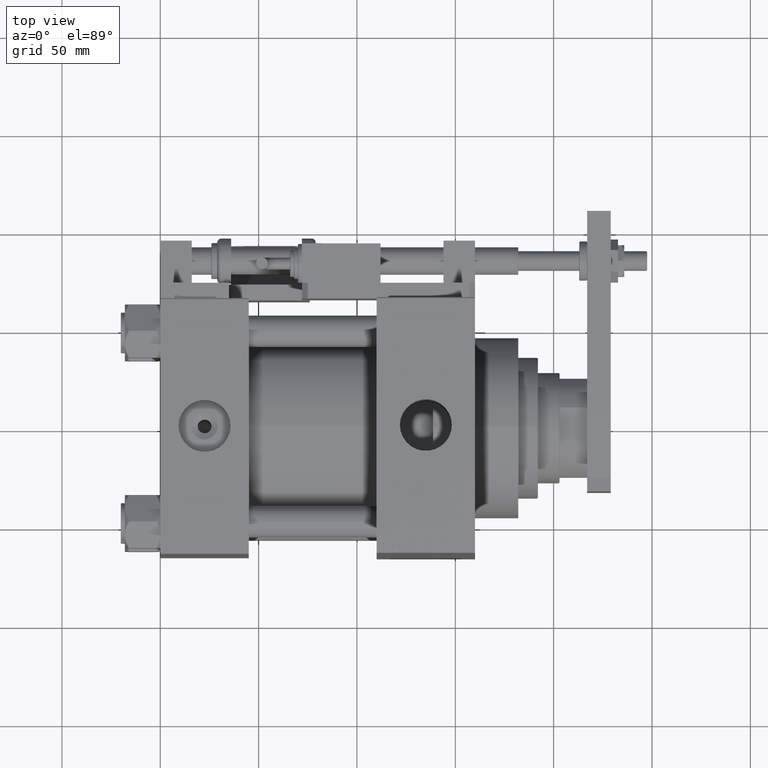
[diagram: clean part render]
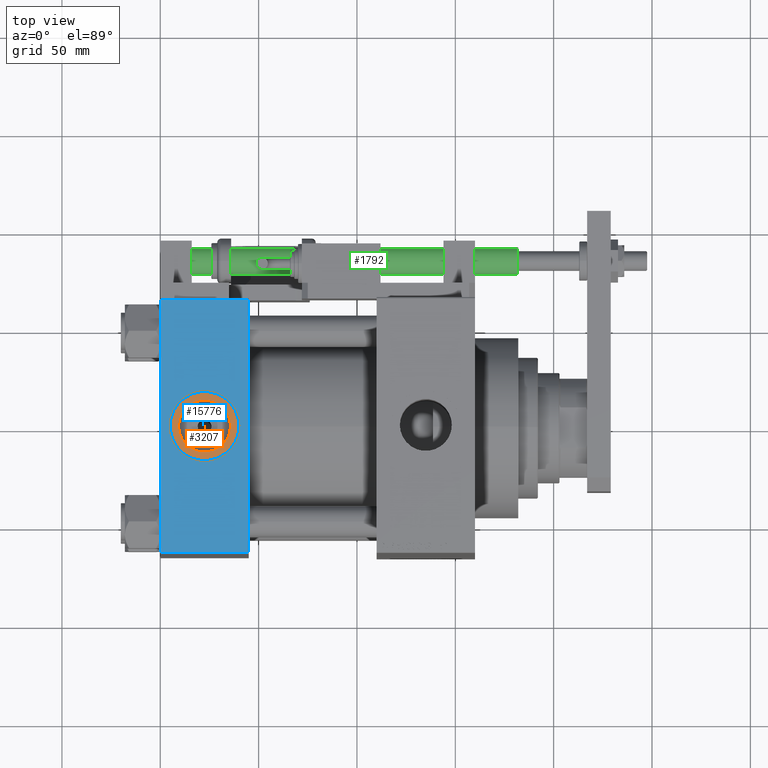
[diagram: same view with three faces highlighted in distinct colors, each labeled with its STEP entity id]
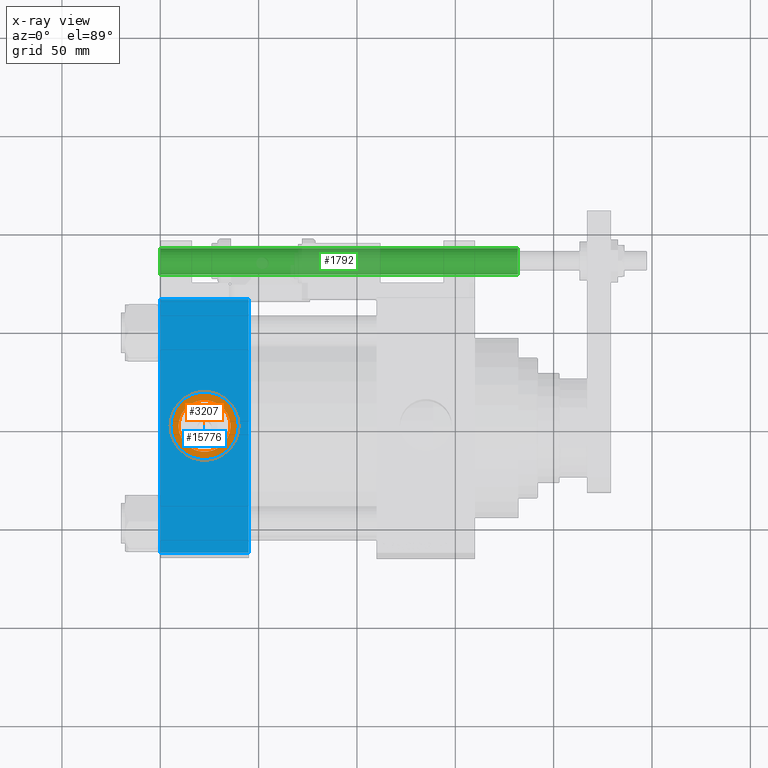
[diagram: x-ray of the same camera — body ghosted, the three highlighted faces saturated]
A machine part, top view with three faces highlighted in distinct colors.
The next image is the same camera in x-ray (body ghosted, the three faces saturated) — at least one of them is partly hidden behind the body in this view.
Their STEP definitions:

[orange] entity #3207 — the highlighted planar face has unit normal (0, 0, 1).
#62 = EDGE_CURVE ( 'NONE', #15854, #24247, #4000, .T. ) ;
#384 = EDGE_LOOP ( 'NONE', ( #38248, #5339 ) ) ;
#2417 = AXIS2_PLACEMENT_3D ( 'NONE', #35950, #3205, #47576 ) ;
#2811 = DIRECTION ( 'NONE',  ( 0.000000000000000000, 0.000000000000000000, 1.000000000000000000 ) ) ;
#3205 = DIRECTION ( 'NONE',  ( 0.000000000000000000, 0.000000000000000000, 1.000000000000000000 ) ) ;
#3207 = ADVANCED_FACE ( 'NONE', ( #22958, #15606 ), #19149, .T. ) ;
#4000 = CIRCLE ( 'NONE', #35967, 17.50000000000000000 ) ;
#5339 = ORIENTED_EDGE ( 'NONE', *, *, #29800, .F. ) ;
#8457 = DIRECTION ( 'NONE',  ( 1.000000000000000000, 0.000000000000000000, 0.000000000000000000 ) ) ;
#8559 = CARTESIAN_POINT ( 'NONE',  ( 4.999999999999997335, -1.346937938528339560E-14, 64.79999999999999716 ) ) ;
#11250 = DIRECTION ( 'NONE',  ( 0.000000000000000000, 0.000000000000000000, 1.000000000000000000 ) ) ;
#15606 = FACE_OUTER_BOUND ( 'NONE', #31727, .T. ) ;
#15854 = VERTEX_POINT ( 'NONE', #33167 ) ;
#17004 = AXIS2_PLACEMENT_3D ( 'NONE', #24272, #45105, #45373 ) ;
#18043 = VERTEX_POINT ( 'NONE', #29899 ) ;
#18376 = CARTESIAN_POINT ( 'NONE',  ( 9.279999999999994031, -1.399352821531846349E-14, 64.79999999999999716 ) ) ;
#19149 = PLANE ( 'NONE',  #2417 ) ;
#19655 = DIRECTION ( 'NONE',  ( 1.000000000000000000, 0.000000000000000000, 0.000000000000000000 ) ) ;
#22212 = EDGE_CURVE ( 'NONE', #18043, #45047, #49962, .T. ) ;
#22958 = FACE_BOUND ( 'NONE', #384, .T. ) ;
#24247 = VERTEX_POINT ( 'NONE', #8559 ) ;
#24272 = CARTESIAN_POINT ( 'NONE',  ( 22.50000000000000000, -1.561251128379126385E-14, 64.79999999999999716 ) ) ;
#29100 = CIRCLE ( 'NONE', #17004, 17.50000000000000000 ) ;
#29800 = EDGE_CURVE ( 'NONE', #45047, #18043, #52825, .T. ) ;
#29899 = CARTESIAN_POINT ( 'NONE',  ( 35.71999999999999886, -1.561251128379126385E-14, 64.79999999999999716 ) ) ;
#31727 = EDGE_LOOP ( 'NONE', ( #35902, #45761 ) ) ;
#33167 = CARTESIAN_POINT ( 'NONE',  ( 40.00000000000000000, -1.561251128379126385E-14, 64.79999999999999716 ) ) ;
#35555 = CARTESIAN_POINT ( 'NONE',  ( 22.50000000000000000, -1.561251128379126385E-14, 64.79999999999999716 ) ) ;
#35902 = ORIENTED_EDGE ( 'NONE', *, *, #62, .T. ) ;
#35950 = CARTESIAN_POINT ( 'NONE',  ( 22.50000000000000000, -1.561251128379126385E-14, 64.79999999999999716 ) ) ;
#35967 = AXIS2_PLACEMENT_3D ( 'NONE', #35555, #2811, #52561 ) ;
#36375 = CARTESIAN_POINT ( 'NONE',  ( 22.50000000000000000, -1.561251128379126385E-14, 64.79999999999999716 ) ) ;
#38248 = ORIENTED_EDGE ( 'NONE', *, *, #22212, .F. ) ;
#40688 = DIRECTION ( 'NONE',  ( 0.000000000000000000, 0.000000000000000000, 1.000000000000000000 ) ) ;
#42458 = AXIS2_PLACEMENT_3D ( 'NONE', #52396, #11250, #19655 ) ;
#45047 = VERTEX_POINT ( 'NONE', #18376 ) ;
#45105 = DIRECTION ( 'NONE',  ( 0.000000000000000000, 0.000000000000000000, 1.000000000000000000 ) ) ;
#45373 = DIRECTION ( 'NONE',  ( 1.000000000000000000, 0.000000000000000000, 0.000000000000000000 ) ) ;
#45761 = ORIENTED_EDGE ( 'NONE', *, *, #49586, .T. ) ;
#47576 = DIRECTION ( 'NONE',  ( 1.000000000000000000, 0.000000000000000000, -0.000000000000000000 ) ) ;
#49586 = EDGE_CURVE ( 'NONE', #24247, #15854, #29100, .T. ) ;
#49962 = CIRCLE ( 'NONE', #52540, 13.22000000000000242 ) ;
#52396 = CARTESIAN_POINT ( 'NONE',  ( 22.50000000000000000, -1.561251128379126385E-14, 64.79999999999999716 ) ) ;
#52540 = AXIS2_PLACEMENT_3D ( 'NONE', #36375, #40688, #8457 ) ;
#52561 = DIRECTION ( 'NONE',  ( 1.000000000000000000, 0.000000000000000000, 0.000000000000000000 ) ) ;
#52825 = CIRCLE ( 'NONE', #42458, 13.22000000000000242 ) ;

[blue] entity #15776 — the highlighted planar face has unit normal (0, 0, -1).
#440 = PLANE ( 'NONE',  #38489 ) ;
#1713 = AXIS2_PLACEMENT_3D ( 'NONE', #36096, #47185, #6069 ) ;
#3908 = ORIENTED_EDGE ( 'NONE', *, *, #51480, .T. ) ;
#4051 = LINE ( 'NONE', #15403, #52613 ) ;
#5573 = ORIENTED_EDGE ( 'NONE', *, *, #27530, .F. ) ;
#6069 = DIRECTION ( 'NONE',  ( 1.000000000000000000, 0.000000000000000000, 0.000000000000000000 ) ) ;
#7078 = CIRCLE ( 'NONE', #52891, 17.50000000000000000 ) ;
#9845 = LINE ( 'NONE', #30152, #13359 ) ;
#10466 = ORIENTED_EDGE ( 'NONE', *, *, #28179, .F. ) ;
#12033 = CARTESIAN_POINT ( 'NONE',  ( 45.00000000000000000, 65.00000000000000000, 65.00000000000001421 ) ) ;
#12830 = VERTEX_POINT ( 'NONE', #19764 ) ;
#13359 = VECTOR ( 'NONE', #18776, 1000.000000000000000 ) ;
#13875 = DIRECTION ( 'NONE',  ( 1.000000000000000000, 0.000000000000000000, 0.000000000000000000 ) ) ;
#15403 = CARTESIAN_POINT ( 'NONE',  ( 45.00000000000000000, 65.00000000000000000, 65.00000000000001421 ) ) ;
#15776 = ADVANCED_FACE ( 'NONE', ( #25042, #36711 ), #440, .F. ) ;
#17012 = VERTEX_POINT ( 'NONE', #49055 ) ;
#18776 = DIRECTION ( 'NONE',  ( -1.000000000000000000, 0.000000000000000000, 0.000000000000000000 ) ) ;
#19764 = CARTESIAN_POINT ( 'NONE',  ( 45.00000000000000000, -64.49999999999997158, 64.99999999999998579 ) ) ;
#20278 = ORIENTED_EDGE ( 'NONE', *, *, #24720, .T. ) ;
#20481 = VECTOR ( 'NONE', #44130, 1000.000000000000000 ) ;
#21487 = CARTESIAN_POINT ( 'NONE',  ( 22.50000000000000000, -1.561251128379126385E-14, 65.00000000000000000 ) ) ;
#21527 = CIRCLE ( 'NONE', #1713, 17.50000000000000000 ) ;
#24720 = EDGE_CURVE ( 'NONE', #39296, #32142, #26351, .T. ) ;
#25042 = FACE_BOUND ( 'NONE', #41925, .T. ) ;
#25377 = ORIENTED_EDGE ( 'NONE', *, *, #45963, .T. ) ;
#25746 = VECTOR ( 'NONE', #26621, 1000.000000000000000 ) ;
#26351 = LINE ( 'NONE', #35292, #25746 ) ;
#26621 = DIRECTION ( 'NONE',  ( 0.000000000000000000, -1.000000000000000000, -2.135044278125300850E-16 ) ) ;
#27530 = EDGE_CURVE ( 'NONE', #43638, #12830, #4051, .T. ) ;
#27620 = CARTESIAN_POINT ( 'NONE',  ( 45.00000000000000000, -64.49999999999997158, 64.99999999999998579 ) ) ;
#27662 = CARTESIAN_POINT ( 'NONE',  ( 40.00000000000000000, -1.561251128379126385E-14, 65.00000000000000000 ) ) ;
#28179 = EDGE_CURVE ( 'NONE', #53453, #17012, #21527, .T. ) ;
#28308 = ORIENTED_EDGE ( 'NONE', *, *, #40730, .F. ) ;
#29873 = DIRECTION ( 'NONE',  ( 0.000000000000000000, 0.000000000000000000, 1.000000000000000000 ) ) ;
#30152 = CARTESIAN_POINT ( 'NONE',  ( 0.000000000000000000, 64.49999999999997158, 65.00000000000001421 ) ) ;
#31687 = LINE ( 'NONE', #27620, #20481 ) ;
#32142 = VERTEX_POINT ( 'NONE', #33978 ) ;
#33978 = CARTESIAN_POINT ( 'NONE',  ( 0.000000000000000000, -64.49999999999997158, 64.99999999999998579 ) ) ;
#35292 = CARTESIAN_POINT ( 'NONE',  ( 0.000000000000000000, 65.00000000000000000, 65.00000000000001421 ) ) ;
#35872 = CARTESIAN_POINT ( 'NONE',  ( 45.00000000000000000, 64.49999999999997158, 65.00000000000001421 ) ) ;
#36096 = CARTESIAN_POINT ( 'NONE',  ( 22.50000000000000000, -1.561251128379126385E-14, 65.00000000000000000 ) ) ;
#36711 = FACE_OUTER_BOUND ( 'NONE', #38514, .T. ) ;
#38489 = AXIS2_PLACEMENT_3D ( 'NONE', #12033, #53170, #41021 ) ;
#38514 = EDGE_LOOP ( 'NONE', ( #20278, #3908, #5573, #25377 ) ) ;
#39296 = VERTEX_POINT ( 'NONE', #45193 ) ;
#40730 = EDGE_CURVE ( 'NONE', #17012, #53453, #7078, .T. ) ;
#41021 = DIRECTION ( 'NONE',  ( 0.000000000000000000, 1.000000000000000000, 2.135044278125301096E-16 ) ) ;
#41925 = EDGE_LOOP ( 'NONE', ( #10466, #28308 ) ) ;
#43638 = VERTEX_POINT ( 'NONE', #35872 ) ;
#44130 = DIRECTION ( 'NONE',  ( 1.000000000000000000, 0.000000000000000000, 0.000000000000000000 ) ) ;
#44917 = DIRECTION ( 'NONE',  ( 0.000000000000000000, -1.000000000000000000, -2.135044278125300850E-16 ) ) ;
#45193 = CARTESIAN_POINT ( 'NONE',  ( 0.000000000000000000, 64.49999999999997158, 65.00000000000001421 ) ) ;
#45963 = EDGE_CURVE ( 'NONE', #43638, #39296, #9845, .T. ) ;
#47185 = DIRECTION ( 'NONE',  ( 0.000000000000000000, 0.000000000000000000, 1.000000000000000000 ) ) ;
#49055 = CARTESIAN_POINT ( 'NONE',  ( 4.999999999999997335, -1.346937938528339560E-14, 65.00000000000000000 ) ) ;
#51480 = EDGE_CURVE ( 'NONE', #32142, #12830, #31687, .T. ) ;
#52613 = VECTOR ( 'NONE', #44917, 1000.000000000000000 ) ;
#52891 = AXIS2_PLACEMENT_3D ( 'NONE', #21487, #29873, #13875 ) ;
#53170 = DIRECTION ( 'NONE',  ( 0.000000000000000000, 2.135044278125301096E-16, -1.000000000000000000 ) ) ;
#53453 = VERTEX_POINT ( 'NONE', #27662 ) ;

[green] entity #1792 — the highlighted cylindrical surface (edge-blend (fillet) strip) has radius 7 mm, axis along (1, -0, 0).
#872 = CARTESIAN_POINT ( 'NONE',  ( 0.000000000000000000, 0.000000000000000000, 182.0000000000000000 ) ) ;
#1792 = ADVANCED_FACE ( 'NONE', ( #28264 ), #24200, .T. ) ;
#2679 = EDGE_CURVE ( 'NONE', #22392, #22466, #28727, .T. ) ;
#3665 = AXIS2_PLACEMENT_3D ( 'NONE', #34689, #35232, #6000 ) ;
#4905 = DIRECTION ( 'NONE',  ( -1.000000000000000000, 0.000000000000000000, 0.000000000000000000 ) ) ;
#4970 = VECTOR ( 'NONE', #12741, 1000.000000000000000 ) ;
#6000 = DIRECTION ( 'NONE',  ( 1.000000000000000000, 0.000000000000000000, 0.000000000000000000 ) ) ;
#6128 = DIRECTION ( 'NONE',  ( -0.000000000000000000, -0.000000000000000000, -1.000000000000000000 ) ) ;
#12741 = DIRECTION ( 'NONE',  ( -0.000000000000000000, -0.000000000000000000, -1.000000000000000000 ) ) ;
#13570 = CARTESIAN_POINT ( 'NONE',  ( 0.000000000000000000, 0.000000000000000000, 182.0000000000000000 ) ) ;
#16151 = EDGE_CURVE ( 'NONE', #22392, #34796, #22050, .T. ) ;
#16935 = ORIENTED_EDGE ( 'NONE', *, *, #16151, .F. ) ;
#19008 = ORIENTED_EDGE ( 'NONE', *, *, #44627, .F. ) ;
#21450 = DIRECTION ( 'NONE',  ( 1.000000000000000000, 0.000000000000000000, 0.000000000000000000 ) ) ;
#22050 = CIRCLE ( 'NONE', #52274, 7.000000000000000000 ) ;
#22392 = VERTEX_POINT ( 'NONE', #23048 ) ;
#22466 = VERTEX_POINT ( 'NONE', #39579 ) ;
#23048 = CARTESIAN_POINT ( 'NONE',  ( -7.000000000000000000, 0.000000000000000000, 182.0000000000000000 ) ) ;
#23176 = ORIENTED_EDGE ( 'NONE', *, *, #2679, .T. ) ;
#24200 = CYLINDRICAL_SURFACE ( 'NONE', #29102, 7.000000000000000000 ) ;
#24550 = CARTESIAN_POINT ( 'NONE',  ( 7.000000000000000000, 8.572527594031473190E-16, 0.2999999999999392042 ) ) ;
#24679 = CARTESIAN_POINT ( 'NONE',  ( -7.000000000000000000, 0.000000000000000000, 182.0000000000000000 ) ) ;
#26315 = DIRECTION ( 'NONE',  ( 0.000000000000000000, 0.000000000000000000, 1.000000000000000000 ) ) ;
#28264 = FACE_OUTER_BOUND ( 'NONE', #40569, .T. ) ;
#28727 = LINE ( 'NONE', #24679, #4970 ) ;
#29102 = AXIS2_PLACEMENT_3D ( 'NONE', #872, #34136, #4905 ) ;
#32547 = LINE ( 'NONE', #49040, #53042 ) ;
#34136 = DIRECTION ( 'NONE',  ( -0.000000000000000000, -0.000000000000000000, -1.000000000000000000 ) ) ;
#34689 = CARTESIAN_POINT ( 'NONE',  ( 0.000000000000000000, 0.000000000000000000, 0.2999999999999392042 ) ) ;
#34796 = VERTEX_POINT ( 'NONE', #46287 ) ;
#35232 = DIRECTION ( 'NONE',  ( -0.000000000000000000, -0.000000000000000000, 1.000000000000000000 ) ) ;
#36968 = EDGE_CURVE ( 'NONE', #22466, #50494, #46845, .T. ) ;
#39579 = CARTESIAN_POINT ( 'NONE',  ( -7.000000000000000000, 0.000000000000000000, 0.2999999999999392042 ) ) ;
#40569 = EDGE_LOOP ( 'NONE', ( #19008, #16935, #23176, #53487 ) ) ;
#44627 = EDGE_CURVE ( 'NONE', #34796, #50494, #32547, .T. ) ;
#46287 = CARTESIAN_POINT ( 'NONE',  ( 7.000000000000000000, 8.572527594031473190E-16, 182.0000000000000000 ) ) ;
#46845 = CIRCLE ( 'NONE', #3665, 7.000000000000000000 ) ;
#49040 = CARTESIAN_POINT ( 'NONE',  ( 7.000000000000000000, 8.572527594031473190E-16, 182.0000000000000000 ) ) ;
#50494 = VERTEX_POINT ( 'NONE', #24550 ) ;
#52274 = AXIS2_PLACEMENT_3D ( 'NONE', #13570, #26315, #21450 ) ;
#53042 = VECTOR ( 'NONE', #6128, 1000.000000000000000 ) ;
#53487 = ORIENTED_EDGE ( 'NONE', *, *, #36968, .T. ) ;